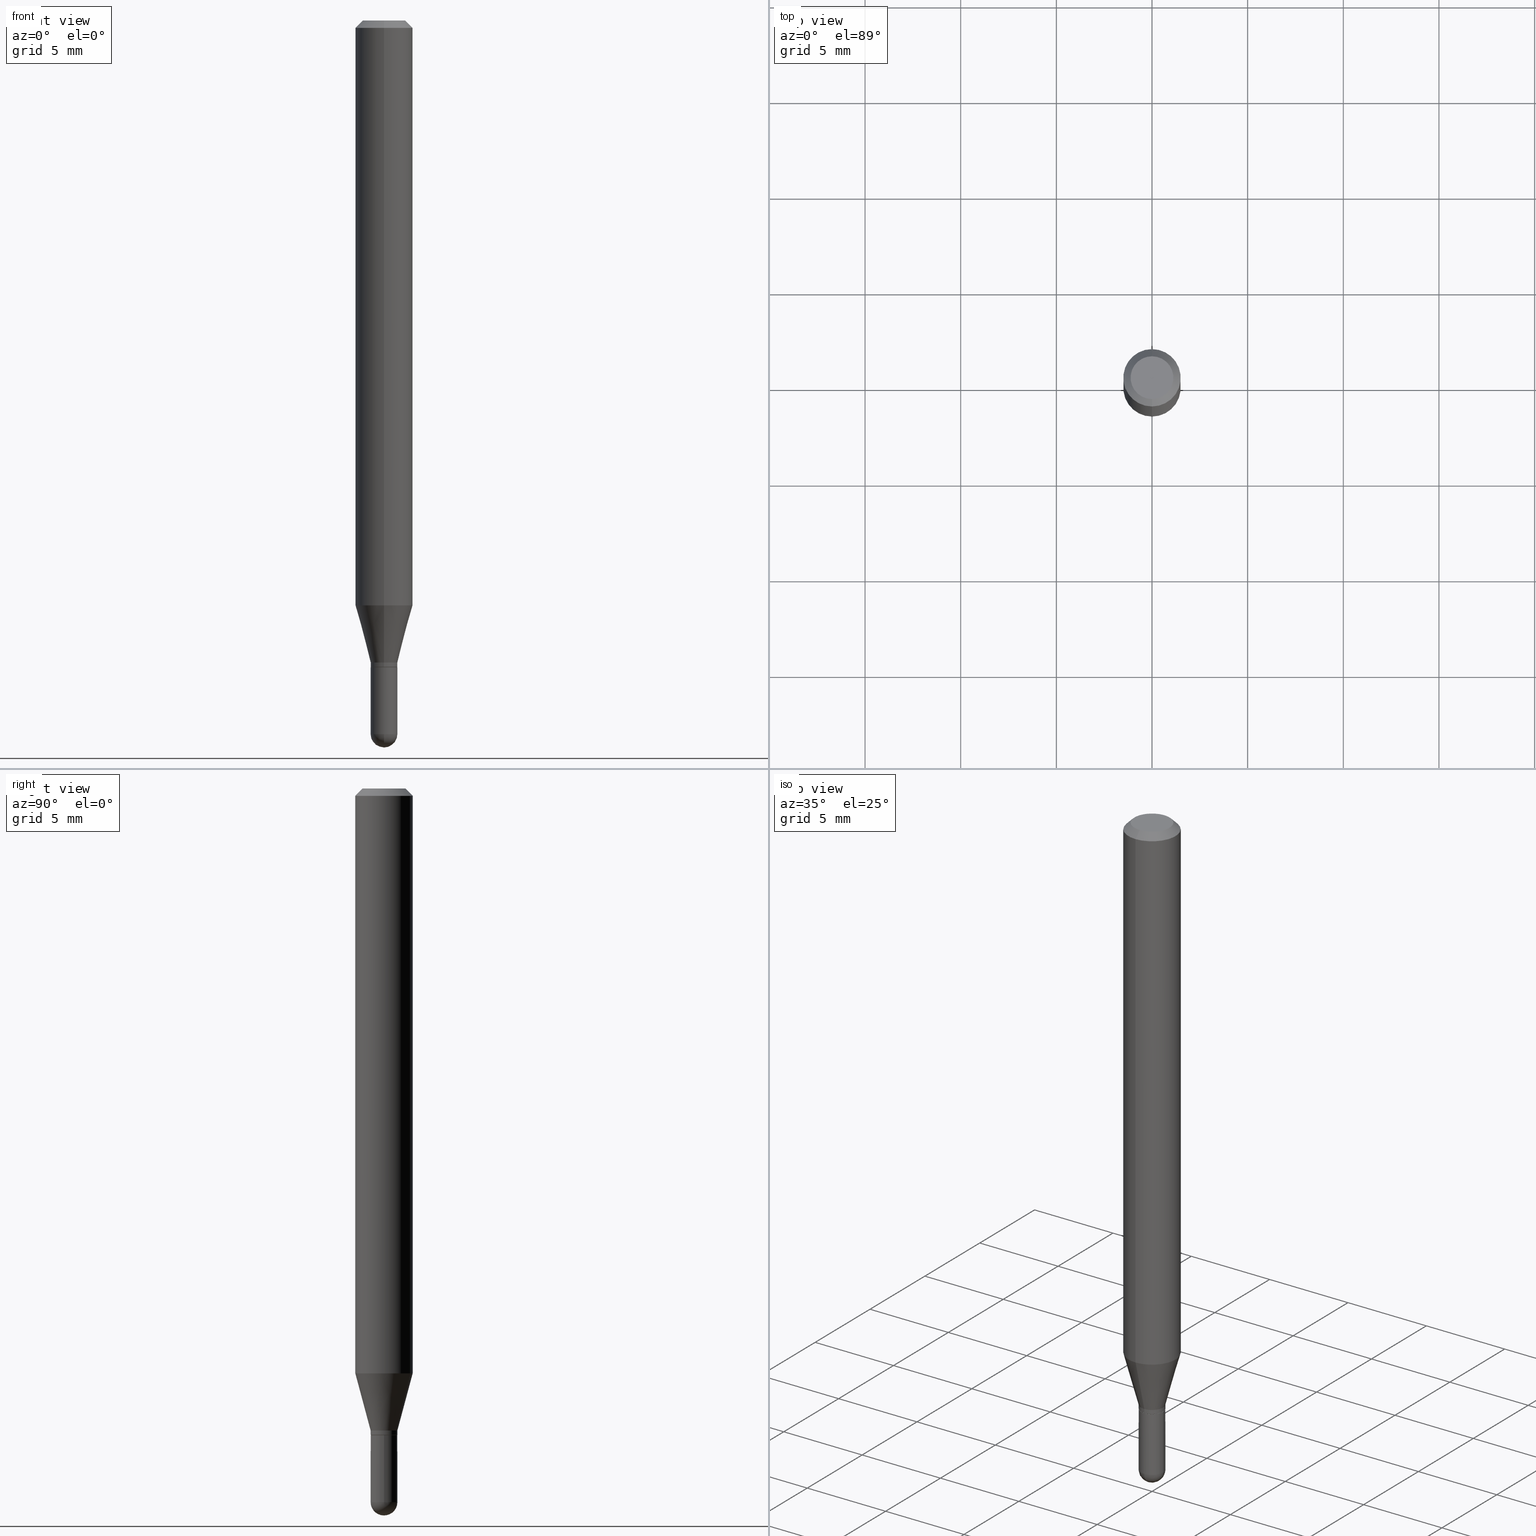
[diagram: canonical four-view strip — front | top / right | iso, engineering-drawing reading convention]
A machine part, canonical four-view strip (front | top / right | iso — engineering-drawing reading convention). The complete STEP part file that produces these views, byte-faithful:
ISO-10303-21;
HEADER;
FILE_DESCRIPTION (( 'STEP AP203' ),
    '1' );
FILE_NAME ('01953.STEP',
    '2024-03-07T19:47:15',
    ( '' ),
    ( '' ),
    'SwSTEP 2.0',
    'SolidWorks 2023',
    '' );
FILE_SCHEMA (( 'CONFIG_CONTROL_DESIGN' ));
ENDSEC;

DATA;
#1 = VERTEX_POINT ( 'NONE', #132 ) ;
#2 = EDGE_CURVE ( 'NONE', #1, #237, #448, .T. ) ;
#3 = CC_DESIGN_PERSON_AND_ORGANIZATION_ASSIGNMENT ( #459, #344, ( #148 ) ) ;
#4 = AXIS2_PLACEMENT_3D ( 'NONE', #465, #128, #470 ) ;
#5 = ADVANCED_FACE ( 'NONE', ( #129 ), #313, .T. ) ;
#6 = DIRECTION ( 'NONE',  ( 1.000000000000000000, -6.982962677686265922E-15, 4.883557194083112901E-29 ) ) ;
#7 = ADVANCED_FACE ( 'NONE', ( #292 ), #251, .T. ) ;
#8 = PLANE ( 'NONE',  #233 ) ;
#9 = EDGE_LOOP ( 'NONE', ( #30, #454, #347, #95 ) ) ;
#10 = CARTESIAN_POINT ( 'NONE',  ( 3.588937232196492421E-29, -5.130788822089751023E-15, -1.468549999999999800 ) ) ;
#11 = ORIENTED_EDGE ( 'NONE', *, *, #89, .F. ) ;
#12 = CONICAL_SURFACE ( 'NONE', #368, 0.05904999999999999832, 0.7853981633974483900 ) ;
#13 = AXIS2_PLACEMENT_3D ( 'NONE', #216, #139, #369 ) ;
#14 = VERTEX_POINT ( 'NONE', #373 ) ;
#15 = DIRECTION ( 'NONE',  ( -2.445452905076983623E-29, 3.491504110135055043E-15, 1.000000000000000000 ) ) ;
#16 = DIRECTION ( 'NONE',  ( -2.445452905076983903E-29, 3.491504110135055043E-15, 1.000000000000000000 ) ) ;
#17 = DIRECTION ( 'NONE',  ( -6.982962677686265922E-15, -1.000000000000000000, 0.000000000000000000 ) ) ;
#18 = DATE_AND_TIME ( #488, #154 ) ;
#19 = EDGE_CURVE ( 'NONE', #431, #302, #158, .T. ) ;
#20 = DIRECTION ( 'NONE',  ( -6.982962677686266711E-15, -1.000000000000000000, 0.000000000000000000 ) ) ;
#21 = CARTESIAN_POINT ( 'NONE',  ( 1.957545237019374412E-16, 0.02754999999999504373, -1.321099999999999719 ) ) ;
#22 = AXIS2_PLACEMENT_3D ( 'NONE', #49, #84, #362 ) ;
#23 = EDGE_CURVE ( 'NONE', #334, #119, #171, .T. ) ;
#24 = LINE ( 'NONE', #258, #51 ) ;
#25 = APPLICATION_CONTEXT ( 'configuration controlled 3d designs of mechanical parts and assemblies' ) ;
#26 = APPROVAL_STATUS ( 'not_yet_approved' ) ;
#27 = ADVANCED_FACE ( 'NONE', ( #481 ), #395, .T. ) ;
#28 = PERSON_AND_ORGANIZATION ( #120, #335 ) ;
#29 = CLOSED_SHELL ( 'NONE', ( #309, #270, #472, #27, #382 ) ) ;
#30 = ORIENTED_EDGE ( 'NONE', *, *, #495, .T. ) ;
#31 = LINE ( 'NONE', #393, #227 ) ;
#32 = EDGE_LOOP ( 'NONE', ( #511, #243, #263, #11 ) ) ;
#33 = LINE ( 'NONE', #498, #383 ) ;
#34 = APPROVAL_PERSON_ORGANIZATION ( #447, #192, #109 ) ;
#35 = AXIS2_PLACEMENT_3D ( 'NONE', #321, #104, #296 ) ;
#36 = EDGE_LOOP ( 'NONE', ( #424, #491, #477, #65 ) ) ;
#37 = EDGE_CURVE ( 'NONE', #14, #412, #287, .T. ) ;
#38 = CYLINDRICAL_SURFACE ( 'NONE', #503, 0.02754999999999999810 ) ;
#39 = CARTESIAN_POINT ( 'NONE',  ( 0.000000000000000000, 0.000000000000000000, 0.000000000000000000 ) ) ;
#40 = ORIENTED_EDGE ( 'NONE', *, *, #336, .F. ) ;
#41 = CC_DESIGN_PERSON_AND_ORGANIZATION_ASSIGNMENT ( #157, #230, ( #394 ) ) ;
#42 = DIRECTION ( 'NONE',  ( -6.982962677686265922E-15, -1.000000000000000000, 0.000000000000000000 ) ) ;
#43 = AXIS2_PLACEMENT_3D ( 'NONE', #10, #6, #17 ) ;
#44 = CARTESIAN_POINT ( 'NONE',  ( 0.02754999999999999810, -1.923806217702566205E-16, 1.343386701731780333E-30 ) ) ;
#45 = CARTESIAN_POINT ( 'NONE',  ( 3.668179357615481635E-31, -5.237256165202590947E-17, -0.01500000000000002373 ) ) ;
#46 = ORIENTED_EDGE ( 'NONE', *, *, #244, .F. ) ;
#47 = DIRECTION ( 'NONE',  ( -2.445452905076983903E-29, 3.491504110135055043E-15, 1.000000000000000000 ) ) ;
#48 = CC_DESIGN_DATE_AND_TIME_ASSIGNMENT ( #117, #306, ( #148 ) ) ;
#49 = CARTESIAN_POINT ( 'NONE',  ( 3.591293215323181808E-29, -5.127414920158100475E-15, -1.468549999999999800 ) ) ;
#50 = DIRECTION ( 'NONE',  ( -2.445452905076983623E-29, 3.491504110135055043E-15, 1.000000000000000000 ) ) ;
#51 = VECTOR ( 'NONE', #405, 39.37007874015748143 ) ;
#52 = CARTESIAN_POINT ( 'NONE',  ( -1.923806217702219352E-16, -0.02755000000000427246, -1.321099999999999719 ) ) ;
#53 = PERSON_AND_ORGANIZATION_ROLE ( 'creator' ) ;
#54 = DIRECTION ( 'NONE',  ( 6.982962677686265922E-15, 1.000000000000000000, -3.505890868245046092E-15 ) ) ;
#55 = EDGE_CURVE ( 'NONE', #119, #212, #219, .T. ) ;
#56 = CALENDAR_DATE ( 2024, 7, 3 ) ;
#57 = DIRECTION ( 'NONE',  ( -6.982962677686265922E-15, -1.000000000000000000, 3.491504110135055043E-15 ) ) ;
#58 = CARTESIAN_POINT ( 'NONE',  ( -3.536586717851222218E-16, -0.04404999999999999888, 1.299395162454715791E-16 ) ) ;
#59 = DIRECTION ( 'NONE',  ( -2.445468806185136597E-29, 3.491481338843145583E-15, 1.000000000000000000 ) ) ;
#60 = CARTESIAN_POINT ( 'NONE',  ( 3.588937232196492421E-29, -5.130788822089751023E-15, -1.468549999999999800 ) ) ;
#61 = CYLINDRICAL_SURFACE ( 'NONE', #493, 0.05904999999999999832 ) ;
#62 = CARTESIAN_POINT ( 'NONE',  ( 4.195754854663390985E-16, 0.05904999999999999832, -2.061733177034750099E-16 ) ) ;
#63 = CONICAL_SURFACE ( 'NONE', #413, 0.02705000000000000113, 0.7853981633974739252 ) ;
#64 = COORDINATED_UNIVERSAL_TIME_OFFSET ( 5, 0, .BEHIND. ) ;
#65 = ORIENTED_EDGE ( 'NONE', *, *, #135, .F. ) ;
#66 = ORIENTED_EDGE ( 'NONE', *, *, #19, .F. ) ;
#67 = CC_DESIGN_APPROVAL ( #506, ( #148 ) ) ;
#68 = ORIENTED_EDGE ( 'NONE', *, *, #156, .F. ) ;
#69 = FACE_OUTER_BOUND ( 'NONE', #269, .T. ) ;
#70 = CIRCLE ( 'NONE', #322, 0.05904999999999999832 ) ;
#71 = PLANE ( 'NONE',  #77 ) ;
#72 = EDGE_CURVE ( 'NONE', #416, #334, #252, .T. ) ;
#73 = SHAPE_DEFINITION_REPRESENTATION ( #286, #450 ) ;
#74 = AXIS2_PLACEMENT_3D ( 'NONE', #39, #165, #167 ) ;
#75 = DIRECTION ( 'NONE',  ( -2.445452905076983623E-29, 3.491504110135055043E-15, 1.000000000000000000 ) ) ;
#76 = SECURITY_CLASSIFICATION_LEVEL ( 'unclassified' ) ;
#77 = AXIS2_PLACEMENT_3D ( 'NONE', #138, #152, #220 ) ;
#78 = CIRCLE ( 'NONE', #423, 0.02754999999999965810 ) ;
#79 = ORIENTED_EDGE ( 'NONE', *, *, #72, .T. ) ;
#80 = EDGE_CURVE ( 'NONE', #302, #431, #166, .T. ) ;
#81 = CARTESIAN_POINT ( 'NONE',  ( 4.195754854663686808E-16, 0.05904999999999994975, -0.01500000000000023016 ) ) ;
#82 = DIRECTION ( 'NONE',  ( 6.982962677686265922E-15, 1.000000000000000000, -3.491504110135055043E-15 ) ) ;
#83 = VERTEX_POINT ( 'NONE', #180 ) ;
#84 = DIRECTION ( 'NONE',  ( -2.445468806185136597E-29, 3.491481338843145583E-15, 1.000000000000000000 ) ) ;
#85 = DIRECTION ( 'NONE',  ( -4.851104656540964275E-15, -0.7071067811865500152, -0.7071067811865450192 ) ) ;
#86 = CIRCLE ( 'NONE', #22, 0.02754999999999999810 ) ;
#87 = CARTESIAN_POINT ( 'NONE',  ( 0.02755000000000000157, -4.838494839368829407E-15, -1.330699999999999772 ) ) ;
#88 = DIRECTION ( 'NONE',  ( -6.982962677686265922E-15, -1.000000000000000000, 3.505890868245046092E-15 ) ) ;
#89 = EDGE_CURVE ( 'NONE', #464, #83, #86, .T. ) ;
#90 = CARTESIAN_POINT ( 'NONE',  ( 2.943201366485378008E-29, -4.202166251782840722E-15, -1.203540399561579211 ) ) ;
#91 = DIRECTION ( 'NONE',  ( -1.000000000000000000, 6.982962677686265922E-15, -4.883557194083112340E-29 ) ) ;
#92 = FACE_OUTER_BOUND ( 'NONE', #189, .T. ) ;
#93 = DIRECTION ( 'NONE',  ( -2.445452905076983903E-29, 3.491504110135055043E-15, 1.000000000000000000 ) ) ;
#94 = DIRECTION ( 'NONE',  ( -6.982962677686265922E-15, -1.000000000000000000, 3.505890868245046092E-15 ) ) ;
#95 = ORIENTED_EDGE ( 'NONE', *, *, #23, .F. ) ;
#96 = CC_DESIGN_SECURITY_CLASSIFICATION ( #148, ( #394 ) ) ;
#97 = CARTESIAN_POINT ( 'NONE',  ( 4.123439461173743285E-16, 0.05904999999999994975, -0.01500000000000023016 ) ) ;
#98 = ORIENTED_EDGE ( 'NONE', *, *, #2, .F. ) ;
#99 = PERSON_AND_ORGANIZATION ( #120, #335 ) ;
#100 = ADVANCED_FACE ( 'NONE', ( #331 ), #8, .F. ) ;
#101 = VERTEX_POINT ( 'NONE', #172 ) ;
#102 = DIRECTION ( 'NONE',  ( 6.982962677686265922E-15, 1.000000000000000000, -3.505890868245046092E-15 ) ) ;
#103 = AXIS2_PLACEMENT_3D ( 'NONE', #441, #93, #434 ) ;
#104 = DIRECTION ( 'NONE',  ( -2.445452905076983623E-29, 3.491504110135055043E-15, 1.000000000000000000 ) ) ;
#105 = DIRECTION ( 'NONE',  ( 1.000000000000000000, 0.000000000000000000, 0.000000000000000000 ) ) ;
#106 = EDGE_CURVE ( 'NONE', #201, #237, #398, .T. ) ;
#107 = MECHANICAL_CONTEXT ( 'NONE', #461, 'mechanical' ) ;
#108 = LOCAL_TIME ( 14, 47, 15.00000000000000000, #386 ) ;
#109 = APPROVAL_ROLE ( '' ) ;
#110 = EDGE_LOOP ( 'NONE', ( #231, #389, #79, #323 ) ) ;
#111 = ORIENTED_EDGE ( 'NONE', *, *, #106, .T. ) ;
#112 = CIRCLE ( 'NONE', #356, 0.02754999999999999810 ) ;
#113 = AXIS2_PLACEMENT_3D ( 'NONE', #428, #91, #402 ) ;
#114 = CIRCLE ( 'NONE', #378, 0.02754999999999991483 ) ;
#115 = LENGTH_MEASURE_WITH_UNIT ( LENGTH_MEASURE( 0.02539999999999999897 ), #490 );
#116 = ORIENTED_EDGE ( 'NONE', *, *, #37, .T. ) ;
#117 = DATE_AND_TIME ( #422, #108 ) ;
#118 = DIRECTION ( 'NONE',  ( -2.445452905076983903E-29, 3.491504110135055043E-15, 1.000000000000000000 ) ) ;
#119 = VERTEX_POINT ( 'NONE', #438 ) ;
#120 = PERSON ( 'UNSPECIFIED', 'UNSPECIFIED', 'UNSPECIFIED', ('UNSPECIFIED'), ('UNSPECIFIED'), ('UNSPECIFIED') ) ;
#121 = ORIENTED_EDGE ( 'NONE', *, *, #2, .T. ) ;
#122 = ADVANCED_FACE ( 'NONE', ( #249 ), #400, .F. ) ;
#123 = FACE_OUTER_BOUND ( 'NONE', #147, .T. ) ;
#124 = CARTESIAN_POINT ( 'NONE',  ( 3.668179357615481635E-31, -5.237256165202590947E-17, -0.01500000000000002373 ) ) ;
#125 = EDGE_CURVE ( 'NONE', #83, #1, #31, .T. ) ;
#126 = VECTOR ( 'NONE', #211, 39.37007874015748143 ) ;
#127 = CARTESIAN_POINT ( 'NONE',  ( 0.000000000000000000, 0.000000000000000000, 0.000000000000000000 ) ) ;
#128 = DIRECTION ( 'NONE',  ( -2.445452905076983903E-29, 3.491504110135055043E-15, 1.000000000000000000 ) ) ;
#129 = FACE_OUTER_BOUND ( 'NONE', #507, .T. ) ;
#130 = AXIS2_PLACEMENT_3D ( 'NONE', #436, #358, #88 ) ;
#131 = CARTESIAN_POINT ( 'NONE',  ( 1.957545237019369481E-16, 0.02754999999999491536, -1.330199999999999827 ) ) ;
#132 = CARTESIAN_POINT ( 'NONE',  ( -0.02755000000000000157, -4.691010045176429992E-15, -1.330699999999999772 ) ) ;
#133 = CIRCLE ( 'NONE', #501, 0.05904999999999999832 ) ;
#134 = VECTOR ( 'NONE', #281, 39.37007874015748143 ) ;
#135 = EDGE_CURVE ( 'NONE', #234, #416, #351, .T. ) ;
#136 = DIRECTION ( 'NONE',  ( -6.982962677686265922E-15, -1.000000000000000000, 3.491504110135055043E-15 ) ) ;
#137 = ORIENTED_EDGE ( 'NONE', *, *, #206, .F. ) ;
#138 = CARTESIAN_POINT ( 'NONE',  ( 1.923806217702892103E-16, 0.02754999999999535945, -1.330699999999999772 ) ) ;
#139 = DIRECTION ( 'NONE',  ( -2.445452905076983903E-29, 3.491504110135055043E-15, 1.000000000000000000 ) ) ;
#140 =( NAMED_UNIT ( * ) PLANE_ANGLE_UNIT ( ) SI_UNIT ( $, .RADIAN. ) );
#141 = DIRECTION ( 'NONE',  ( 2.445452905076983623E-29, -3.491504110135055043E-15, -1.000000000000000000 ) ) ;
#142 = PERSON_AND_ORGANIZATION ( #120, #335 ) ;
#143 = AXIS2_PLACEMENT_3D ( 'NONE', #207, #47, #136 ) ;
#144 = CARTESIAN_POINT ( 'NONE',  ( 3.655131906243548589E-29, -5.228666083940705482E-15, -1.496099999999999541 ) ) ;
#145 = DIRECTION ( 'NONE',  ( 1.839019923739601104E-15, 0.2588190451025250693, 0.9659258262890670910 ) ) ;
#146 = DATE_AND_TIME ( #261, #361 ) ;
#147 = EDGE_LOOP ( 'NONE', ( #137, #213, #282, #392 ) ) ;
#148 = SECURITY_CLASSIFICATION ( '', '', #76 ) ;
#149 = CARTESIAN_POINT ( 'NONE',  ( 0.02754999999999999810, -5.079145190648592548E-15, -1.468549999999999800 ) ) ;
#150 = ORIENTED_EDGE ( 'NONE', *, *, #125, .T. ) ;
#151 = PERSON_AND_ORGANIZATION_ROLE ( 'design_owner' ) ;
#152 = DIRECTION ( 'NONE',  ( 2.438088387897960049E-29, -3.491481338843145188E-15, -1.000000000000000000 ) ) ;
#153 = ORIENTED_EDGE ( 'NONE', *, *, #194, .T. ) ;
#154 = LOCAL_TIME ( 14, 47, 15.00000000000000000, #64 ) ;
#155 = APPROVAL_STATUS ( 'not_yet_approved' ) ;
#156 = EDGE_CURVE ( 'NONE', #119, #492, #33, .T. ) ;
#157 = PERSON_AND_ORGANIZATION ( #120, #335 ) ;
#158 = CIRCLE ( 'NONE', #13, 0.02705000000000000113 ) ;
#159 = CARTESIAN_POINT ( 'NONE',  ( 0.000000000000000000, 0.000000000000000000, 0.000000000000000000 ) ) ;
#160 = SPHERICAL_SURFACE ( 'NONE', #210, 0.02754999999999991483 ) ;
#161 = ORIENTED_EDGE ( 'NONE', *, *, #214, .T. ) ;
#162 = DIRECTION ( 'NONE',  ( -6.982962677686266711E-15, -1.000000000000000000, 0.000000000000000000 ) ) ;
#163 = ADVANCED_FACE ( 'NONE', ( #69 ), #197, .T. ) ;
#164 = DIRECTION ( 'NONE',  ( 7.105427357601000281E-15, 1.000000000000000000, 0.000000000000000000 ) ) ;
#165 = DIRECTION ( 'NONE',  ( -2.445468806185136597E-29, 3.491481338843145583E-15, 1.000000000000000000 ) ) ;
#166 = CIRCLE ( 'NONE', #103, 0.02705000000000000113 ) ;
#167 = DIRECTION ( 'NONE',  ( 1.000000000000000000, -6.982962677686265922E-15, 4.876176775795936353E-29 ) ) ;
#168 = ORIENTED_EDGE ( 'NONE', *, *, #408, .T. ) ;
#169 = ORIENTED_EDGE ( 'NONE', *, *, #421, .F. ) ;
#170 = ORIENTED_EDGE ( 'NONE', *, *, #353, .F. ) ;
#171 = LINE ( 'NONE', #52, #425 ) ;
#172 = CARTESIAN_POINT ( 'NONE',  ( 3.076650045841530487E-16, 0.02754999999999504373, -1.321099999999999719 ) ) ;
#173 = DIMENSIONAL_EXPONENTS ( 1.000000000000000000, 0.000000000000000000, 0.000000000000000000, 0.000000000000000000, 0.000000000000000000, 0.000000000000000000, 0.000000000000000000 ) ;
#174 = ORIENTED_EDGE ( 'NONE', *, *, #466, .T. ) ;
#175 = AXIS2_PLACEMENT_3D ( 'NONE', #453, #381, #105 ) ;
#176 = CIRCLE ( 'NONE', #458, 0.02754999999999999810 ) ;
#177 = DIRECTION ( 'NONE',  ( -2.445468806185136597E-29, 3.491481338843145583E-15, 1.000000000000000000 ) ) ;
#178 = ORIENTED_EDGE ( 'NONE', *, *, #214, .F. ) ;
#179 = CARTESIAN_POINT ( 'NONE',  ( 4.195754854663682864E-16, 0.05904999999999576560, -1.203540399561579655 ) ) ;
#180 = CARTESIAN_POINT ( 'NONE',  ( -0.02754999999999999810, -4.691010045176429992E-15, -1.468549999999999800 ) ) ;
#181 = DATE_TIME_ROLE ( 'creation_date' ) ;
#182 = CARTESIAN_POINT ( 'NONE',  ( -1.923806217702204068E-16, -0.02755000000000508778, -1.468549999999999800 ) ) ;
#183 = DIRECTION ( 'NONE',  ( -6.982962677686265922E-15, -1.000000000000000000, 0.000000000000000000 ) ) ;
#184 = CONICAL_SURFACE ( 'NONE', #504, 0.05904999999999999832, 0.7853981633974483900 ) ;
#185 = VECTOR ( 'NONE', #85, 39.37007874015748143 ) ;
#186 =( NAMED_UNIT ( * ) SI_UNIT ( $, .STERADIAN. ) SOLID_ANGLE_UNIT ( ) );
#187 = PRODUCT_DEFINITION ( 'UNKNOWN', '', #394, #319 ) ;
#188 = CARTESIAN_POINT ( 'NONE',  ( 3.591293215323181808E-29, -5.127414920158100475E-15, -1.468549999999999800 ) ) ;
#189 = EDGE_LOOP ( 'NONE', ( #265, #340, #290, #111, #98 ) ) ;
#190 = AXIS2_PLACEMENT_3D ( 'NONE', #90, #284, #401 ) ;
#191 = PERSON_AND_ORGANIZATION_ROLE ( 'design_supplier' ) ;
#192 = APPROVAL ( #26, 'UNSPECIFIED' ) ;
#193 = ORIENTED_EDGE ( 'NONE', *, *, #19, .T. ) ;
#194 = EDGE_CURVE ( 'NONE', #416, #234, #346, .T. ) ;
#195 = DIRECTION ( 'NONE',  ( -6.982962677686265922E-15, -1.000000000000000000, 0.000000000000000000 ) ) ;
#196 = DIRECTION ( 'NONE',  ( 1.000000000000000000, -6.982962677686265922E-15, 4.876176775795936353E-29 ) ) ;
#197 = CYLINDRICAL_SURFACE ( 'NONE', #494, 0.05904999999999999832 ) ;
#198 = AXIS2_PLACEMENT_3D ( 'NONE', #374, #222, #20 ) ;
#199 = DATE_AND_TIME ( #266, #444 ) ;
#200 = VECTOR ( 'NONE', #218, 39.37007874015748143 ) ;
#201 = VERTEX_POINT ( 'NONE', #149 ) ;
#202 = CC_DESIGN_DATE_AND_TIME_ASSIGNMENT ( #18, #181, ( #187 ) ) ;
#203 = EDGE_LOOP ( 'NONE', ( #380, #329 ) ) ;
#204 = ORIENTED_EDGE ( 'NONE', *, *, #305, .F. ) ;
#205 = APPROVAL_PERSON_ORGANIZATION ( #28, #506, #236 ) ;
#206 = EDGE_CURVE ( 'NONE', #303, #14, #295, .T. ) ;
#207 = CARTESIAN_POINT ( 'NONE',  ( 0.000000000000000000, 0.000000000000000000, 0.000000000000000000 ) ) ;
#208 = CARTESIAN_POINT ( 'NONE',  ( 5.835153820226643818E-46, -8.331161685548889663E-32, -2.386123980597757681E-17 ) ) ;
#209 = AXIS2_PLACEMENT_3D ( 'NONE', #370, #426, #474 ) ;
#210 = AXIS2_PLACEMENT_3D ( 'NONE', #60, #271, #195 ) ;
#211 = DIRECTION ( 'NONE',  ( -2.445468806185136877E-29, 3.491481338843145188E-15, 1.000000000000000000 ) ) ;
#212 = VERTEX_POINT ( 'NONE', #179 ) ;
#213 = ORIENTED_EDGE ( 'NONE', *, *, #305, .T. ) ;
#214 = EDGE_CURVE ( 'NONE', #212, #119, #70, .T. ) ;
#215 = CARTESIAN_POINT ( 'NONE',  ( 3.254185340390560677E-29, -4.646114217598572614E-15, -1.330699999999999772 ) ) ;
#216 = CARTESIAN_POINT ( 'NONE',  ( 3.254164180785941563E-29, -4.646144519356714868E-15, -1.330699999999999550 ) ) ;
#217 = CARTESIAN_POINT ( 'NONE',  ( -1.888891404313809742E-16, -0.02705000000000464672, -1.330699999999999550 ) ) ;
#218 = DIRECTION ( 'NONE',  ( -4.937700262164674260E-15, -0.7071067811865632269, 0.7071067811865319186 ) ) ;
#219 = CIRCLE ( 'NONE', #190, 0.05904999999999999832 ) ;
#220 = DIRECTION ( 'NONE',  ( -1.000000000000000000, 6.982962677686265922E-15, -4.876176775795935793E-29 ) ) ;
#221 = DIRECTION ( 'NONE',  ( -2.445468806185136597E-29, 3.491481338843145583E-15, 1.000000000000000000 ) ) ;
#222 = DIRECTION ( 'NONE',  ( -2.445452905076983903E-29, 3.491504110135055043E-15, 1.000000000000000000 ) ) ;
#223 = CARTESIAN_POINT ( 'NONE',  ( 5.835153820226643818E-46, -8.331161685548889663E-32, -2.386123980597757681E-17 ) ) ;
#224 = ORIENTED_EDGE ( 'NONE', *, *, #466, .F. ) ;
#225 = DATE_AND_TIME ( #56, #341 ) ;
#226 = FACE_OUTER_BOUND ( 'NONE', #462, .T. ) ;
#227 = VECTOR ( 'NONE', #273, 39.37007874015748143 ) ;
#228 =( CONVERSION_BASED_UNIT ( 'INCH', #115 ) LENGTH_UNIT ( ) NAMED_UNIT ( #173 ) );
#229 = PERSON_AND_ORGANIZATION ( #120, #335 ) ;
#230 = PERSON_AND_ORGANIZATION_ROLE ( 'creator' ) ;
#231 = ORIENTED_EDGE ( 'NONE', *, *, #278, .F. ) ;
#232 =( GEOMETRIC_REPRESENTATION_CONTEXT ( 3 ) GLOBAL_UNCERTAINTY_ASSIGNED_CONTEXT ( ( #307 ) ) GLOBAL_UNIT_ASSIGNED_CONTEXT ( ( #228, #140, #186 ) ) REPRESENTATION_CONTEXT ( 'NONE', 'WORKASPACE' ) );
#233 = AXIS2_PLACEMENT_3D ( 'NONE', #245, #141, #82 ) ;
#234 = VERTEX_POINT ( 'NONE', #131 ) ;
#235 = CARTESIAN_POINT ( 'NONE',  ( 3.252941454333404266E-29, -4.644398767301648932E-15, -1.330199999999999827 ) ) ;
#236 = APPROVAL_ROLE ( '' ) ;
#237 = VERTEX_POINT ( 'NONE', #87 ) ;
#238 = DIRECTION ( 'NONE',  ( -2.445452905076983903E-29, 3.491504110135055043E-15, 1.000000000000000000 ) ) ;
#239 = ORIENTED_EDGE ( 'NONE', *, *, #277, .F. ) ;
#240 = EDGE_CURVE ( 'NONE', #101, #334, #78, .T. ) ;
#241 = ORIENTED_EDGE ( 'NONE', *, *, #106, .F. ) ;
#242 = CARTESIAN_POINT ( 'NONE',  ( 3.230687832897202823E-29, -4.612626079899420322E-15, -1.321099999999999719 ) ) ;
#243 = ORIENTED_EDGE ( 'NONE', *, *, #336, .T. ) ;
#244 = EDGE_CURVE ( 'NONE', #237, #1, #379, .T. ) ;
#245 = CARTESIAN_POINT ( 'NONE',  ( 3.075995059520799729E-16, 0.04404999999999999888, -1.657313759544379597E-16 ) ) ;
#246 = DIRECTION ( 'NONE',  ( -2.445452905076983903E-29, 3.491504110135055043E-15, 1.000000000000000000 ) ) ;
#247 = VECTOR ( 'NONE', #15, 39.37007874015748143 ) ;
#248 = ORIENTED_EDGE ( 'NONE', *, *, #421, .T. ) ;
#249 = FACE_OUTER_BOUND ( 'NONE', #415, .T. ) ;
#250 = DIRECTION ( 'NONE',  ( -6.982962677686265922E-15, -1.000000000000000000, 0.000000000000000000 ) ) ;
#251 = CYLINDRICAL_SURFACE ( 'NONE', #143, 0.02754999999999965810 ) ;
#252 = LINE ( 'NONE', #476, #134 ) ;
#253 = CARTESIAN_POINT ( 'NONE',  ( -4.123439461173736383E-16, -0.05905000000000005383, -0.01499999999999981730 ) ) ;
#254 = CARTESIAN_POINT ( 'NONE',  ( 1.957545237019051472E-16, 0.02754999999999965810, -9.619093823421957447E-17 ) ) ;
#255 = CARTESIAN_POINT ( 'NONE',  ( 3.588937232196492421E-29, -5.130788822089751023E-15, -1.468549999999999800 ) ) ;
#256 = APPROVAL_ROLE ( '' ) ;
#257 = CARTESIAN_POINT ( 'NONE',  ( 1.939781668625386436E-16, 0.02704999999999535901, -1.330699999999999550 ) ) ;
#258 = CARTESIAN_POINT ( 'NONE',  ( 1.922018100231396241E-16, 0.02704999999999535901, -1.330699999999999550 ) ) ;
#259 = EDGE_LOOP ( 'NONE', ( #204, #363, #116, #174 ) ) ;
#260 = CYLINDRICAL_SURFACE ( 'NONE', #342, 0.02754999999999965810 ) ;
#261 = CALENDAR_DATE ( 2024, 7, 3 ) ;
#262 = ORIENTED_EDGE ( 'NONE', *, *, #495, .F. ) ;
#263 = ORIENTED_EDGE ( 'NONE', *, *, #442, .F. ) ;
#264 = DIRECTION ( 'NONE',  ( -2.445468806185136597E-29, 3.491481338843145583E-15, 1.000000000000000000 ) ) ;
#265 = ORIENTED_EDGE ( 'NONE', *, *, #125, .F. ) ;
#266 = CALENDAR_DATE ( 2024, 7, 3 ) ;
#267 = EDGE_LOOP ( 'NONE', ( #325, #150, #46, #241, #419 ) ) ;
#268 = VECTOR ( 'NONE', #145, 39.37007874015748143 ) ;
#269 = EDGE_LOOP ( 'NONE', ( #169, #161, #317, #224 ) ) ;
#270 = ADVANCED_FACE ( 'NONE', ( #478 ), #160, .T. ) ;
#271 = DIRECTION ( 'NONE',  ( 1.000000000000000000, -6.982962677686265922E-15, 4.883557194083112901E-29 ) ) ;
#272 = CARTESIAN_POINT ( 'NONE',  ( 3.254164180785941563E-29, -4.646144519356714868E-15, -1.330699999999999550 ) ) ;
#273 = DIRECTION ( 'NONE',  ( -2.445468806185136877E-29, 3.491481338843145188E-15, 1.000000000000000000 ) ) ;
#274 = AXIS2_PLACEMENT_3D ( 'NONE', #223, #16, #299 ) ;
#275 = DIRECTION ( 'NONE',  ( -6.982962677686265922E-15, -1.000000000000000000, 3.491504110135055438E-15 ) ) ;
#276 = MANIFOLD_SOLID_BREP ( 'Body-Move/Copy2[1]', #29 ) ;
#277 = EDGE_CURVE ( 'NONE', #431, #416, #348, .T. ) ;
#278 = EDGE_CURVE ( 'NONE', #234, #101, #372, .T. ) ;
#279 = DIRECTION ( 'NONE',  ( -6.982962677686265922E-15, -1.000000000000000000, 0.000000000000000000 ) ) ;
#280 = ORIENTED_EDGE ( 'NONE', *, *, #489, .F. ) ;
#281 = DIRECTION ( 'NONE',  ( -2.445452905076983623E-29, 3.491504110135055043E-15, 1.000000000000000000 ) ) ;
#282 = ORIENTED_EDGE ( 'NONE', *, *, #384, .T. ) ;
#283 = EDGE_LOOP ( 'NONE', ( #153, #316, #262, #350 ) ) ;
#284 = DIRECTION ( 'NONE',  ( -2.445452905076983903E-29, 3.491504110135055043E-15, 1.000000000000000000 ) ) ;
#285 = DIRECTION ( 'NONE',  ( 2.445452905076983903E-29, -3.491504110135055043E-15, -1.000000000000000000 ) ) ;
#286 = PRODUCT_DEFINITION_SHAPE ( 'NONE', 'NONE',  #187 ) ;
#287 = LINE ( 'NONE', #97, #487 ) ;
#288 = EDGE_LOOP ( 'NONE', ( #193, #486, #432, #239 ) ) ;
#289 = APPROVAL_DATE_TIME ( #146, #192 ) ;
#290 = ORIENTED_EDGE ( 'NONE', *, *, #489, .T. ) ;
#291 = CARTESIAN_POINT ( 'NONE',  ( 2.943201366485378008E-29, -4.202166251782840722E-15, -1.203540399561579211 ) ) ;
#292 = FACE_OUTER_BOUND ( 'NONE', #283, .T. ) ;
#293 = APPROVAL_STATUS ( 'not_yet_approved' ) ;
#294 = EDGE_CURVE ( 'NONE', #101, #212, #333, .T. ) ;
#295 = CIRCLE ( 'NONE', #274, 0.04404999999999999888 ) ;
#296 = DIRECTION ( 'NONE',  ( -6.982962677686265922E-15, -1.000000000000000000, 3.491504110135055043E-15 ) ) ;
#297 = CARTESIAN_POINT ( 'NONE',  ( 3.591293215323181808E-29, -5.127414920158100475E-15, -1.468549999999999800 ) ) ;
#298 = COORDINATED_UNIVERSAL_TIME_OFFSET ( 5, 0, .BEHIND. ) ;
#299 = DIRECTION ( 'NONE',  ( -6.982962677686265133E-15, -1.000000000000000000, 3.491504110135054649E-15 ) ) ;
#300 = APPLICATION_PROTOCOL_DEFINITION ( 'international standard', 'config_control_design', 1994, #25 ) ;
#301 = AXIS2_PLACEMENT_3D ( 'NONE', #359, #221, #445 ) ;
#302 = VERTEX_POINT ( 'NONE', #257 ) ;
#303 = VERTEX_POINT ( 'NONE', #58 ) ;
#304 = DIRECTION ( 'NONE',  ( -6.982962677686265922E-15, -1.000000000000000000, 0.000000000000000000 ) ) ;
#305 = EDGE_CURVE ( 'NONE', #303, #492, #377, .T. ) ;
#306 = DATE_TIME_ROLE ( 'classification_date' ) ;
#307 = UNCERTAINTY_MEASURE_WITH_UNIT (LENGTH_MEASURE( 1.000000000000000082E-05 ), #228, 'distance_accuracy_value', 'NONE');
#308 = EDGE_LOOP ( 'NONE', ( #388, #121 ) ) ;
#309 = ADVANCED_FACE ( 'NONE', ( #439 ), #38, .T. ) ;
#310 = DIRECTION ( 'NONE',  ( -2.445468806185136597E-29, 3.491481338843145583E-15, 1.000000000000000000 ) ) ;
#311 = DIRECTION ( 'NONE',  ( -2.445452905076983903E-29, 3.491504110135055043E-15, 1.000000000000000000 ) ) ;
#312 = FACE_OUTER_BOUND ( 'NONE', #110, .T. ) ;
#313 = CONICAL_SURFACE ( 'NONE', #397, 0.02754999999999965810, 0.2617993877991502960 ) ;
#314 = FACE_OUTER_BOUND ( 'NONE', #9, .T. ) ;
#315 = DIRECTION ( 'NONE',  ( 4.937700262164548042E-15, 0.7071067811865451302, -0.7071067811865499042 ) ) ;
#316 = ORIENTED_EDGE ( 'NONE', *, *, #278, .T. ) ;
#317 = ORIENTED_EDGE ( 'NONE', *, *, #156, .T. ) ;
#318 = DIRECTION ( 'NONE',  ( -1.807323732225330928E-15, -0.2588190451025182970, 0.9659258262890689783 ) ) ;
#319 = DESIGN_CONTEXT ( 'detailed design', #25, 'design' ) ;
#320 = CARTESIAN_POINT ( 'NONE',  ( 3.230687832897202823E-29, -4.612626079899420322E-15, -1.321099999999999719 ) ) ;
#321 = CARTESIAN_POINT ( 'NONE',  ( 3.254164180785941563E-29, -4.646144519356714868E-15, -1.330699999999999550 ) ) ;
#322 = AXIS2_PLACEMENT_3D ( 'NONE', #291, #375, #449 ) ;
#323 = ORIENTED_EDGE ( 'NONE', *, *, #240, .F. ) ;
#324 = DIRECTION ( 'NONE',  ( 1.000000000000000000, -6.982962677686256455E-15, 0.000000000000000000 ) ) ;
#325 = ORIENTED_EDGE ( 'NONE', *, *, #89, .T. ) ;
#326 = COORDINATED_UNIVERSAL_TIME_OFFSET ( 5, 0, .BEHIND. ) ;
#327 = CONICAL_SURFACE ( 'NONE', #328, 0.02754999999999965810, 0.2617993877991502960 ) ;
#328 = AXIS2_PLACEMENT_3D ( 'NONE', #242, #311, #279 ) ;
#329 = ORIENTED_EDGE ( 'NONE', *, *, #206, .T. ) ;
#330 = CIRCLE ( 'NONE', #130, 0.05904999999999999832 ) ;
#331 = FACE_OUTER_BOUND ( 'NONE', #203, .T. ) ;
#332 = ADVANCED_FACE ( 'NONE', ( #505 ), #63, .T. ) ;
#333 = LINE ( 'NONE', #21, #268 ) ;
#334 = VERTEX_POINT ( 'NONE', #467 ) ;
#335 = ORGANIZATION ( 'UNSPECIFIED', 'UNSPECIFIED', '' ) ;
#336 = EDGE_CURVE ( 'NONE', #417, #339, #437, .T. ) ;
#337 = CARTESIAN_POINT ( 'NONE',  ( -4.051124067684085231E-16, -0.05905000000000005383, -0.01499999999999981730 ) ) ;
#338 = APPLICATION_PROTOCOL_DEFINITION ( 'international standard', 'config_control_design', 1994, #461 ) ;
#339 = VERTEX_POINT ( 'NONE', #182 ) ;
#340 = ORIENTED_EDGE ( 'NONE', *, *, #442, .T. ) ;
#341 = LOCAL_TIME ( 14, 47, 15.00000000000000000, #298 ) ;
#342 = AXIS2_PLACEMENT_3D ( 'NONE', #484, #410, #57 ) ;
#343 = CC_DESIGN_PERSON_AND_ORGANIZATION_ASSIGNMENT ( #390, #191, ( #394 ) ) ;
#344 = PERSON_AND_ORGANIZATION_ROLE ( 'classification_officer' ) ;
#345 = CIRCLE ( 'NONE', #485, 0.02754999999999965810 ) ;
#346 = CIRCLE ( 'NONE', #4, 0.02754999999999965463 ) ;
#347 = ORIENTED_EDGE ( 'NONE', *, *, #55, .F. ) ;
#348 = LINE ( 'NONE', #497, #200 ) ;
#349 = VECTOR ( 'NONE', #50, 39.37007874015748143 ) ;
#350 = ORIENTED_EDGE ( 'NONE', *, *, #72, .F. ) ;
#351 = CIRCLE ( 'NONE', #475, 0.02754999999999965463 ) ;
#352 = ORIENTED_EDGE ( 'NONE', *, *, #23, .T. ) ;
#353 = EDGE_CURVE ( 'NONE', #201, #464, #176, .T. ) ;
#354 = EDGE_LOOP ( 'NONE', ( #40, #168, #170, #280 ) ) ;
#355 = CARTESIAN_POINT ( 'NONE',  ( -1.923806217702223543E-16, -0.02755000000000439042, -1.330199999999999827 ) ) ;
#356 = AXIS2_PLACEMENT_3D ( 'NONE', #188, #59, #455 ) ;
#357 = DIRECTION ( 'NONE',  ( -2.445452905076983903E-29, 3.491504110135055043E-15, 1.000000000000000000 ) ) ;
#358 = DIRECTION ( 'NONE',  ( -2.445452905076983903E-29, 3.491504110135055043E-15, 1.000000000000000000 ) ) ;
#359 = CARTESIAN_POINT ( 'NONE',  ( 3.254185340390560677E-29, -4.646114217598572614E-15, -1.330699999999999772 ) ) ;
#360 = ADVANCED_FACE ( 'NONE', ( #314 ), #327, .T. ) ;
#361 = LOCAL_TIME ( 14, 47, 15.00000000000000000, #326 ) ;
#362 = DIRECTION ( 'NONE',  ( 1.000000000000000000, -6.982962677686257244E-15, 0.000000000000000000 ) ) ;
#363 = ORIENTED_EDGE ( 'NONE', *, *, #446, .F. ) ;
#364 = DIRECTION ( 'NONE',  ( -6.982962677686265133E-15, -1.000000000000000000, 3.491504110135054649E-15 ) ) ;
#365 = CARTESIAN_POINT ( 'NONE',  ( 1.957545237019431358E-16, 0.02754999999999482516, -1.468549999999999800 ) ) ;
#366 = CYLINDRICAL_SURFACE ( 'NONE', #74, 0.02754999999999999810 ) ;
#367 = DIRECTION ( 'NONE',  ( -2.445452905076983903E-29, 3.491504110135055043E-15, 1.000000000000000000 ) ) ;
#368 = AXIS2_PLACEMENT_3D ( 'NONE', #45, #285, #54 ) ;
#369 = DIRECTION ( 'NONE',  ( -6.982962677686266711E-15, -1.000000000000000000, 0.000000000000000000 ) ) ;
#370 = CARTESIAN_POINT ( 'NONE',  ( 3.591293215323181808E-29, -5.127414920158100475E-15, -1.468549999999999800 ) ) ;
#371 = PRODUCT ( '01953', '01953', '', ( #107 ) ) ;
#372 = LINE ( 'NONE', #254, #247 ) ;
#373 = CARTESIAN_POINT ( 'NONE',  ( 3.599717260347271507E-16, 0.04404999999999999888, -1.776619958574267204E-16 ) ) ;
#374 = CARTESIAN_POINT ( 'NONE',  ( 3.254164180785941563E-29, -4.646144519356714868E-15, -1.330699999999999550 ) ) ;
#375 = DIRECTION ( 'NONE',  ( -2.445452905076983903E-29, 3.491504110135055043E-15, 1.000000000000000000 ) ) ;
#376 = APPROVAL_DATE_TIME ( #225, #403 ) ;
#377 = LINE ( 'NONE', #337, #185 ) ;
#378 = AXIS2_PLACEMENT_3D ( 'NONE', #255, #512, #164 ) ;
#379 = CIRCLE ( 'NONE', #468, 0.02755000000000000157 ) ;
#380 = ORIENTED_EDGE ( 'NONE', *, *, #446, .T. ) ;
#381 = DIRECTION ( 'NONE',  ( 0.000000000000000000, 0.000000000000000000, 1.000000000000000000 ) ) ;
#382 = ADVANCED_FACE ( 'NONE', ( #92 ), #366, .T. ) ;
#383 = VECTOR ( 'NONE', #75, 39.37007874015748143 ) ;
#384 = EDGE_CURVE ( 'NONE', #492, #412, #330, .T. ) ;
#385 = ADVANCED_FACE ( 'NONE', ( #312 ), #260, .T. ) ;
#386 = COORDINATED_UNIVERSAL_TIME_OFFSET ( 5, 0, .BEHIND. ) ;
#387 = APPROVAL_PERSON_ORGANIZATION ( #142, #403, #256 ) ;
#388 = ORIENTED_EDGE ( 'NONE', *, *, #244, .T. ) ;
#389 = ORIENTED_EDGE ( 'NONE', *, *, #135, .T. ) ;
#390 = PERSON_AND_ORGANIZATION ( #120, #335 ) ;
#391 = ADVANCED_FACE ( 'NONE', ( #226 ), #61, .T. ) ;
#392 = ORIENTED_EDGE ( 'NONE', *, *, #37, .F. ) ;
#393 = CARTESIAN_POINT ( 'NONE',  ( -0.02754999999999999810, 1.957545237019075877E-16, -1.355166617365226390E-30 ) ) ;
#394 = PRODUCT_DEFINITION_FORMATION_WITH_SPECIFIED_SOURCE ( 'ANY', '', #371, .NOT_KNOWN. ) ;
#395 = SPHERICAL_SURFACE ( 'NONE', #43, 0.02754999999999991483 ) ;
#396 = AXIS2_PLACEMENT_3D ( 'NONE', #208, #246, #364 ) ;
#397 = AXIS2_PLACEMENT_3D ( 'NONE', #483, #357, #42 ) ;
#398 = LINE ( 'NONE', #44, #126 ) ;
#399 = FACE_OUTER_BOUND ( 'NONE', #259, .T. ) ;
#400 = PLANE ( 'NONE',  #35 ) ;
#401 = DIRECTION ( 'NONE',  ( -6.982962677686265922E-15, -1.000000000000000000, 4.626330217890369336E-15 ) ) ;
#402 = DIRECTION ( 'NONE',  ( -6.982962677686265922E-15, -1.000000000000000000, 0.000000000000000000 ) ) ;
#403 = APPROVAL ( #293, 'UNSPECIFIED' ) ;
#404 = CONICAL_SURFACE ( 'NONE', #198, 0.02705000000000000113, 0.7853981633974739252 ) ;
#405 = DIRECTION ( 'NONE',  ( 5.024295867788190974E-15, 0.7071067811865681119, 0.7071067811865270336 ) ) ;
#406 = ADVANCED_FACE ( 'NONE', ( #123 ), #184, .T. ) ;
#407 = FACE_OUTER_BOUND ( 'NONE', #308, .T. ) ;
#408 = EDGE_CURVE ( 'NONE', #417, #464, #114, .T. ) ;
#409 = FACE_OUTER_BOUND ( 'NONE', #288, .T. ) ;
#410 = DIRECTION ( 'NONE',  ( -2.445452905076983903E-29, 3.491504110135055043E-15, 1.000000000000000000 ) ) ;
#411 = DIRECTION ( 'NONE',  ( -2.445452905076983903E-29, 3.491504110135055043E-15, 1.000000000000000000 ) ) ;
#412 = VERTEX_POINT ( 'NONE', #81 ) ;
#413 = AXIS2_PLACEMENT_3D ( 'NONE', #272, #509, #162 ) ;
#414 = PRODUCT_RELATED_PRODUCT_CATEGORY ( 'detail', '', ( #371 ) ) ;
#415 = EDGE_LOOP ( 'NONE', ( #66, #473 ) ) ;
#416 = VERTEX_POINT ( 'NONE', #355 ) ;
#417 = VERTEX_POINT ( 'NONE', #144 ) ;
#418 = APPROVAL_DATE_TIME ( #199, #506 ) ;
#419 = ORIENTED_EDGE ( 'NONE', *, *, #353, .T. ) ;
#420 = CC_DESIGN_APPROVAL ( #192, ( #187 ) ) ;
#421 = EDGE_CURVE ( 'NONE', #212, #412, #451, .T. ) ;
#422 = CALENDAR_DATE ( 2024, 7, 3 ) ;
#423 = AXIS2_PLACEMENT_3D ( 'NONE', #320, #367, #250 ) ;
#424 = ORIENTED_EDGE ( 'NONE', *, *, #510, .F. ) ;
#425 = VECTOR ( 'NONE', #318, 39.37007874015748143 ) ;
#426 = DIRECTION ( 'NONE',  ( -2.445468806185136597E-29, 3.491481338843145583E-15, 1.000000000000000000 ) ) ;
#427 = ORIENTED_EDGE ( 'NONE', *, *, #384, .F. ) ;
#428 = CARTESIAN_POINT ( 'NONE',  ( 3.588937232196492421E-29, -5.130788822089751023E-15, -1.468549999999999800 ) ) ;
#429 = MANIFOLD_SOLID_BREP ( 'Body-Move/Copy2[2]', #463 ) ;
#430 = DIRECTION ( 'NONE',  ( -6.982962677686265922E-15, -1.000000000000000000, 3.491504110135055438E-15 ) ) ;
#431 = VERTEX_POINT ( 'NONE', #217 ) ;
#432 = ORIENTED_EDGE ( 'NONE', *, *, #194, .F. ) ;
#433 = CC_DESIGN_PERSON_AND_ORGANIZATION_ASSIGNMENT ( #99, #53, ( #187 ) ) ;
#434 = DIRECTION ( 'NONE',  ( -6.982962677686266711E-15, -1.000000000000000000, 0.000000000000000000 ) ) ;
#435 = CIRCLE ( 'NONE', #209, 0.02754999999999999810 ) ;
#436 = CARTESIAN_POINT ( 'NONE',  ( 3.668179357615481635E-31, -5.237256165202590947E-17, -0.01500000000000002373 ) ) ;
#437 = CIRCLE ( 'NONE', #113, 0.02754999999999991483 ) ;
#438 = CARTESIAN_POINT ( 'NONE',  ( -4.123439461173447462E-16, -0.05905000000000423105, -1.203540399561578988 ) ) ;
#439 = FACE_OUTER_BOUND ( 'NONE', #267, .T. ) ;
#440 = CARTESIAN_POINT ( 'NONE',  ( 0.000000000000000000, 0.000000000000000000, 0.000000000000000000 ) ) ;
#441 = CARTESIAN_POINT ( 'NONE',  ( 3.254164180785941563E-29, -4.646144519356714868E-15, -1.330699999999999550 ) ) ;
#442 = EDGE_CURVE ( 'NONE', #83, #339, #435, .T. ) ;
#443 = DIRECTION ( 'NONE',  ( -2.445452905076983903E-29, 3.491504110135055043E-15, 1.000000000000000000 ) ) ;
#444 = LOCAL_TIME ( 14, 47, 15.00000000000000000, #500 ) ;
#445 = DIRECTION ( 'NONE',  ( 1.000000000000000000, -6.982962677686256455E-15, 0.000000000000000000 ) ) ;
#446 = EDGE_CURVE ( 'NONE', #14, #303, #456, .T. ) ;
#447 = PERSON_AND_ORGANIZATION ( #120, #335 ) ;
#448 = CIRCLE ( 'NONE', #301, 0.02755000000000000157 ) ;
#449 = DIRECTION ( 'NONE',  ( -6.982962677686265922E-15, -1.000000000000000000, 4.626330217890369336E-15 ) ) ;
#450 = ADVANCED_BREP_SHAPE_REPRESENTATION ( '01953', ( #276, #429, #175 ), #232 ) ;
#451 = LINE ( 'NONE', #62, #349 ) ;
#452 = CARTESIAN_POINT ( 'NONE',  ( 3.230687832897202823E-29, -4.612626079899420322E-15, -1.321099999999999719 ) ) ;
#453 = CARTESIAN_POINT ( 'NONE',  ( 0.000000000000000000, 0.000000000000000000, 0.000000000000000000 ) ) ;
#454 = ORIENTED_EDGE ( 'NONE', *, *, #294, .T. ) ;
#455 = DIRECTION ( 'NONE',  ( 1.000000000000000000, -6.982962677686257244E-15, 0.000000000000000000 ) ) ;
#456 = CIRCLE ( 'NONE', #396, 0.04404999999999999888 ) ;
#457 = ORIENTED_EDGE ( 'NONE', *, *, #240, .T. ) ;
#458 = AXIS2_PLACEMENT_3D ( 'NONE', #297, #264, #480 ) ;
#459 = PERSON_AND_ORGANIZATION ( #120, #335 ) ;
#460 = CC_DESIGN_APPROVAL ( #403, ( #394 ) ) ;
#461 = APPLICATION_CONTEXT ( 'configuration controlled 3d designs of mechanical parts and assemblies' ) ;
#462 = EDGE_LOOP ( 'NONE', ( #471, #248, #427, #68 ) ) ;
#463 = CLOSED_SHELL ( 'NONE', ( #7, #502, #406, #391, #360, #5, #163, #479, #100, #122, #332, #385 ) ) ;
#464 = VERTEX_POINT ( 'NONE', #365 ) ;
#465 = CARTESIAN_POINT ( 'NONE',  ( 3.252941454333404266E-29, -4.644398767301648932E-15, -1.330199999999999827 ) ) ;
#466 = EDGE_CURVE ( 'NONE', #412, #492, #133, .T. ) ;
#467 = CARTESIAN_POINT ( 'NONE',  ( -1.923806217702219352E-16, -0.02755000000000427246, -1.321099999999999719 ) ) ;
#468 = AXIS2_PLACEMENT_3D ( 'NONE', #215, #177, #324 ) ;
#469 = CC_DESIGN_PERSON_AND_ORGANIZATION_ASSIGNMENT ( #229, #151, ( #371 ) ) ;
#470 = DIRECTION ( 'NONE',  ( -6.982962677686265922E-15, -1.000000000000000000, 0.000000000000000000 ) ) ;
#471 = ORIENTED_EDGE ( 'NONE', *, *, #55, .T. ) ;
#472 = ADVANCED_FACE ( 'NONE', ( #407 ), #71, .F. ) ;
#473 = ORIENTED_EDGE ( 'NONE', *, *, #80, .F. ) ;
#474 = DIRECTION ( 'NONE',  ( 1.000000000000000000, -6.982962677686257244E-15, 0.000000000000000000 ) ) ;
#475 = AXIS2_PLACEMENT_3D ( 'NONE', #235, #118, #304 ) ;
#476 = CARTESIAN_POINT ( 'NONE',  ( -1.923806217702542292E-16, -0.02754999999999965810, 9.619093823421957447E-17 ) ) ;
#477 = ORIENTED_EDGE ( 'NONE', *, *, #277, .T. ) ;
#478 = FACE_OUTER_BOUND ( 'NONE', #354, .T. ) ;
#479 = ADVANCED_FACE ( 'NONE', ( #399 ), #12, .T. ) ;
#480 = DIRECTION ( 'NONE',  ( 1.000000000000000000, -6.982962677686257244E-15, 0.000000000000000000 ) ) ;
#481 = FACE_OUTER_BOUND ( 'NONE', #32, .T. ) ;
#482 = CARTESIAN_POINT ( 'NONE',  ( 3.668179357615481635E-31, -5.237256165202590947E-17, -0.01500000000000002373 ) ) ;
#483 = CARTESIAN_POINT ( 'NONE',  ( 3.230687832897202823E-29, -4.612626079899420322E-15, -1.321099999999999719 ) ) ;
#484 = CARTESIAN_POINT ( 'NONE',  ( 0.000000000000000000, 0.000000000000000000, 0.000000000000000000 ) ) ;
#485 = AXIS2_PLACEMENT_3D ( 'NONE', #452, #411, #183 ) ;
#486 = ORIENTED_EDGE ( 'NONE', *, *, #510, .T. ) ;
#487 = VECTOR ( 'NONE', #315, 39.37007874015748143 ) ;
#488 = CALENDAR_DATE ( 2024, 7, 3 ) ;
#489 = EDGE_CURVE ( 'NONE', #339, #201, #112, .T. ) ;
#490 =( LENGTH_UNIT ( ) NAMED_UNIT ( * ) SI_UNIT ( $, .METRE. ) );
#491 = ORIENTED_EDGE ( 'NONE', *, *, #80, .T. ) ;
#492 = VERTEX_POINT ( 'NONE', #253 ) ;
#493 = AXIS2_PLACEMENT_3D ( 'NONE', #440, #499, #275 ) ;
#494 = AXIS2_PLACEMENT_3D ( 'NONE', #159, #238, #430 ) ;
#495 = EDGE_CURVE ( 'NONE', #334, #101, #345, .T. ) ;
#496 = ORIENTED_EDGE ( 'NONE', *, *, #294, .F. ) ;
#497 = CARTESIAN_POINT ( 'NONE',  ( -1.888891404313809742E-16, -0.02705000000000464672, -1.330699999999999550 ) ) ;
#498 = CARTESIAN_POINT ( 'NONE',  ( -4.123439461173739834E-16, -0.05904999999999999832, 2.061733177034750099E-16 ) ) ;
#499 = DIRECTION ( 'NONE',  ( -2.445452905076983903E-29, 3.491504110135055043E-15, 1.000000000000000000 ) ) ;
#500 = COORDINATED_UNIVERSAL_TIME_OFFSET ( 5, 0, .BEHIND. ) ;
#501 = AXIS2_PLACEMENT_3D ( 'NONE', #482, #443, #94 ) ;
#502 = ADVANCED_FACE ( 'NONE', ( #409 ), #404, .T. ) ;
#503 = AXIS2_PLACEMENT_3D ( 'NONE', #127, #310, #196 ) ;
#504 = AXIS2_PLACEMENT_3D ( 'NONE', #124, #508, #102 ) ;
#505 = FACE_OUTER_BOUND ( 'NONE', #36, .T. ) ;
#506 = APPROVAL ( #155, 'UNSPECIFIED' ) ;
#507 = EDGE_LOOP ( 'NONE', ( #496, #457, #352, #178 ) ) ;
#508 = DIRECTION ( 'NONE',  ( 2.445452905076983903E-29, -3.491504110135055043E-15, -1.000000000000000000 ) ) ;
#509 = DIRECTION ( 'NONE',  ( -2.445452905076983903E-29, 3.491504110135055043E-15, 1.000000000000000000 ) ) ;
#510 = EDGE_CURVE ( 'NONE', #302, #234, #24, .T. ) ;
#511 = ORIENTED_EDGE ( 'NONE', *, *, #408, .F. ) ;
#512 = DIRECTION ( 'NONE',  ( 1.000000000000000000, -7.105427357601001070E-15, 4.926315508542082329E-29 ) ) ;
ENDSEC;
END-ISO-10303-21;
